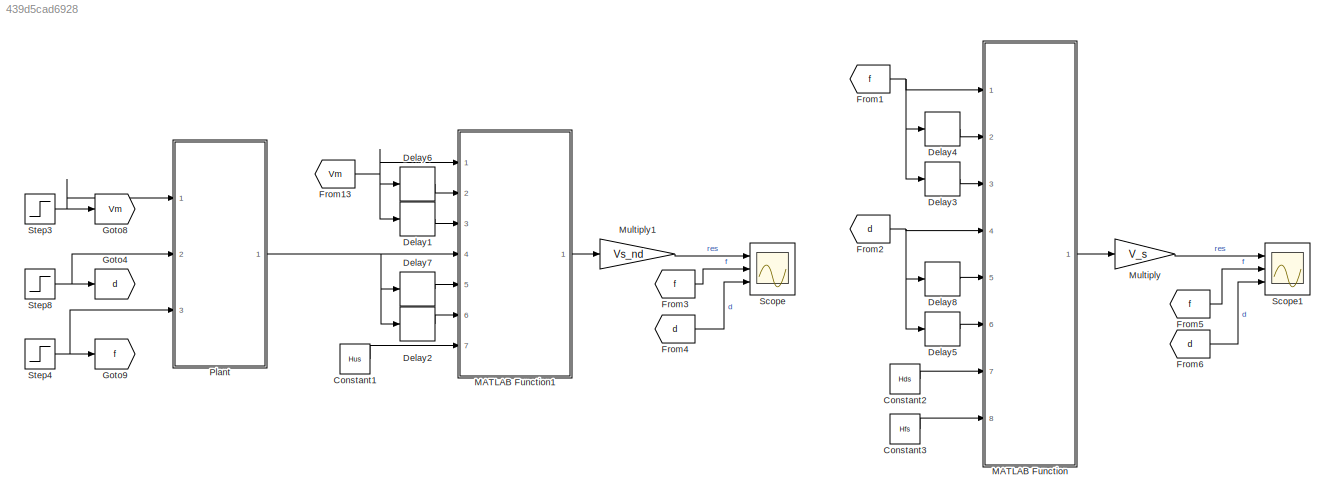
MODEL slx_439d5cad6928
KIND model
CONFIG AbsTol = auto
CONFIG EnableMultiTasking = on
CONFIG FixedStep = auto
CONFIG MaxStep = auto
CONFIG MinStep = auto
CONFIG RelTol = 1e-3
CONFIG SampleTimeConstraint = Unconstrained
CONFIG SolverName = ode45
CONFIG StartTime = 0.0
CONFIG StopTime = 30
BLOCK [Constant] Constant1
  Value = Hus
BLOCK [Constant] Constant2
  Value = Hds
BLOCK [Constant] Constant3
  Value = Hfs
BLOCK [Delay] Delay1
  DelayLength = 1
  InitialCondition = 0
  InputPortMap = u0
  Ports = [1, 1]
BLOCK [Delay] Delay2
  DelayLength = 1
  InitialCondition = 0
  InputPortMap = u0
  Ports = [1, 1]
BLOCK [Delay] Delay3
  DelayLength = 1
  InitialCondition = 0
  InputPortMap = u0
  Ports = [1, 1]
BLOCK [Delay] Delay4
  DelayLength = 1
  InitialCondition = 0
  InputPortMap = u0
  Ports = [1, 1]
BLOCK [Delay] Delay5
  DelayLength = 1
  InitialCondition = 0
  InputPortMap = u0
  Ports = [1, 1]
BLOCK [Delay] Delay6
  DelayLength = 1
  InitialCondition = 0
  InputPortMap = u0
  Ports = [1, 1]
BLOCK [Delay] Delay7
  DelayLength = 1
  InitialCondition = 0
  InputPortMap = u0
  Ports = [1, 1]
BLOCK [Delay] Delay8
  DelayLength = 1
  InitialCondition = 0
  InputPortMap = u0
  Ports = [1, 1]
BLOCK [From] From1
  GotoTag = f
  TagVisibility = global
BLOCK [From] From13
  GotoTag = Vm
  TagVisibility = global
BLOCK [From] From2
  GotoTag = d
  TagVisibility = global
BLOCK [From] From3
  GotoTag = f
  TagVisibility = global
BLOCK [From] From4
  GotoTag = d
  TagVisibility = global
BLOCK [From] From5
  GotoTag = f
  TagVisibility = global
BLOCK [From] From6
  GotoTag = d
  TagVisibility = global
BLOCK [Goto] Goto4
  GotoTag = d
  TagVisibility = global
BLOCK [Goto] Goto8
  GotoTag = Vm
  NameLocation = top
  TagVisibility = global
BLOCK [Goto] Goto9
  GotoTag = f
  TagVisibility = global
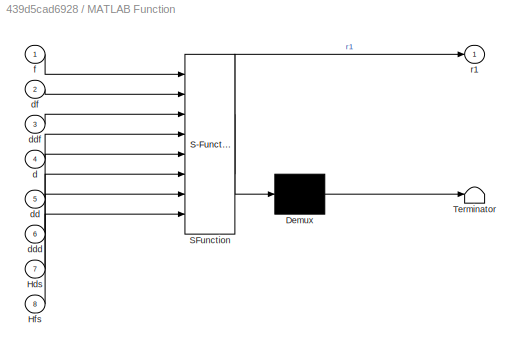
BLOCK [SubSystem] MATLAB Function
  ErrorFcn = Stateflow.Translate.translate
  PermitHierarchicalResolution = ExplicitOnly
  Ports = [8, 1]
  RequestExecContextInheritance = off
  SFBlockType = MATLAB Function
  TreatAsAtomicUnit = on
BLOCK [Demux] MATLAB Function/ Demux 
  Outputs = 1
  Ports = [1, 1]
BLOCK [S-Function] MATLAB Function/ SFunction 
  EnableBusSupport = on
  FunctionName = sf_sfun
  PortCounts = [8 2]
  Ports = [8, 2]
  SFcnIsStateOwnerBlock = off
  SFunctionDeploymentMode = off
  Tag = Stateflow S-Function 1
BLOCK [Terminator] MATLAB Function/ Terminator 
BLOCK [Inport] MATLAB Function/Hds
  Port = 7
BLOCK [Inport] MATLAB Function/Hfs
  Port = 8
BLOCK [Inport] MATLAB Function/d
  Port = 4
BLOCK [Inport] MATLAB Function/dd
  Port = 5
BLOCK [Inport] MATLAB Function/ddd
  Port = 6
BLOCK [Inport] MATLAB Function/ddf
  Port = 3
BLOCK [Inport] MATLAB Function/df
  Port = 2
BLOCK [Inport] MATLAB Function/f
BLOCK [Outport] MATLAB Function/r1
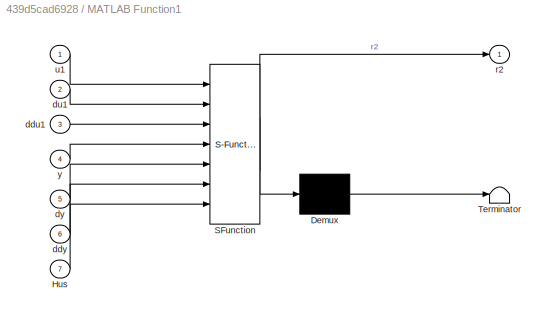
BLOCK [SubSystem] MATLAB Function1
  ErrorFcn = Stateflow.Translate.translate
  PermitHierarchicalResolution = ExplicitOnly
  Ports = [7, 1]
  RequestExecContextInheritance = off
  SFBlockType = MATLAB Function
  TreatAsAtomicUnit = on
BLOCK [Demux] MATLAB Function1/ Demux 
  Outputs = 1
  Ports = [1, 1]
BLOCK [S-Function] MATLAB Function1/ SFunction 
  EnableBusSupport = on
  FunctionName = sf_sfun
  PortCounts = [7 2]
  Ports = [7, 2]
  SFcnIsStateOwnerBlock = off
  SFunctionDeploymentMode = off
  Tag = Stateflow S-Function 3
BLOCK [Terminator] MATLAB Function1/ Terminator 
BLOCK [Inport] MATLAB Function1/Hus
  Port = 7
BLOCK [Inport] MATLAB Function1/ddu1
  Port = 3
BLOCK [Inport] MATLAB Function1/ddy
  Port = 6
BLOCK [Inport] MATLAB Function1/du1
  Port = 2
BLOCK [Inport] MATLAB Function1/dy
  Port = 5
BLOCK [Outport] MATLAB Function1/r2
BLOCK [Inport] MATLAB Function1/u1
BLOCK [Inport] MATLAB Function1/y
  Port = 4
BLOCK [Gain] Multiply
  Gain = V_s
  Multiplication = Matrix(K*u)
BLOCK [Gain] Multiply1
  Gain = Vs_nd
  Multiplication = Matrix(K*u)
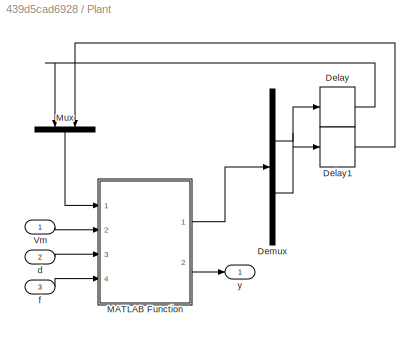
BLOCK [SubSystem] Plant
  Ports = [3, 1]
  RequestExecContextInheritance = off
BLOCK [Delay] Plant/Delay
  DelayLength = 1
  InputPortMap = u0
  InputProcessing = Columns as channels (frame based)
  Ports = [1, 1]
BLOCK [Delay] Plant/Delay1
  DelayLength = 1
  InputPortMap = u0
  InputProcessing = Columns as channels (frame based)
  Ports = [1, 1]
BLOCK [Demux] Plant/Demux
  Outputs = 2
  Ports = [1, 2]
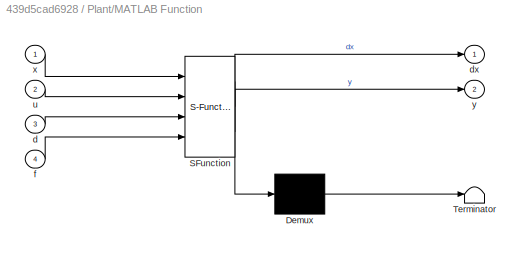
BLOCK [SubSystem] Plant/MATLAB Function
  ErrorFcn = Stateflow.Translate.translate
  PermitHierarchicalResolution = ExplicitOnly
  Ports = [4, 2]
  RequestExecContextInheritance = off
  SFBlockType = MATLAB Function
  TreatAsAtomicUnit = on
BLOCK [Demux] Plant/MATLAB Function/ Demux 
  Outputs = 1
  Ports = [1, 1]
BLOCK [S-Function] Plant/MATLAB Function/ SFunction 
  EnableBusSupport = on
  FunctionName = sf_sfun
  PortCounts = [4 3]
  Ports = [4, 3]
  SFcnIsStateOwnerBlock = off
  SFunctionDeploymentMode = off
  Tag = Stateflow S-Function 2
BLOCK [Terminator] Plant/MATLAB Function/ Terminator 
BLOCK [Inport] Plant/MATLAB Function/d
  Port = 3
BLOCK [Outport] Plant/MATLAB Function/dx
BLOCK [Inport] Plant/MATLAB Function/f
  Port = 4
BLOCK [Inport] Plant/MATLAB Function/u
  Port = 2
BLOCK [Inport] Plant/MATLAB Function/x
BLOCK [Outport] Plant/MATLAB Function/y
  Port = 2
BLOCK [Mux] Plant/Mux
  DisplayOption = bar
  Inputs = 2
  NameLocation = left
  Ports = [2, 1]
BLOCK [Inport] Plant/Vm
BLOCK [Inport] Plant/d
  Port = 2
BLOCK [Inport] Plant/f
  Port = 3
BLOCK [Outport] Plant/y
BLOCK [Scope] Scope
  Floating = off
  NumInputPorts = 3
  Ports = [3]
  ScopeSpecificationString = Simulink.scopes.TimeScopeBlockCfg('CurrentConfiguration', extmgr.ConfigurationSet(extmgr.Configuration('Core','General UI',true),extmgr.Configuration('Core','Source UI',true),extmgr.Configuration('Sources','WiredSimulink',true),extmgr.Configuration('Visuals','Time Domain',true,'SerializedDisplays',{struct('MinYLimReal','-4.82','MaxYLimReal','-1.02583','YLabelReal','','MinYLimMag','0.00000','MaxYLi...<+1981ch>
BLOCK [Scope] Scope1
  Floating = off
  NumInputPorts = 3
  Ports = [3]
  ScopeSpecificationString = Simulink.scopes.TimeScopeBlockCfg('CurrentConfiguration', extmgr.ConfigurationSet(extmgr.Configuration('Core','General UI',true),extmgr.Configuration('Core','Source UI',true),extmgr.Configuration('Sources','WiredSimulink',true,'DataLoggingVariableName','ScopeData1'),extmgr.Configuration('Visuals','Time Domain',true,'SerializedDisplays',{struct('MinYLimReal','-0.39161','MaxYLimReal','3.52445','YLab...<+2025ch>
BLOCK [Step] Step3
  After = 2
  SampleTime = 0
  Time = 0
BLOCK [Step] Step4
  After = 2
  SampleTime = 0
  Time = 2
BLOCK [Step] Step8
  After = 0.5
  SampleTime = 0
LINE Constant1:1 -> MATLAB Function1:7
LINE Constant2:1 -> MATLAB Function:7
LINE Constant3:1 -> MATLAB Function:8
LINE Delay1:1 -> MATLAB Function1:3
LINE Delay2:1 -> MATLAB Function1:6
LINE Delay3:1 -> MATLAB Function:3
LINE Delay4:1 -> MATLAB Function:2
LINE Delay5:1 -> MATLAB Function:6
LINE Delay6:1 -> MATLAB Function1:2
LINE Delay7:1 -> MATLAB Function1:5
LINE Delay8:1 -> MATLAB Function:5
NET From13:1 -> Delay1:1, Delay6:1, MATLAB Function1:1
NET From1:1 -> Delay3:1, Delay4:1, MATLAB Function:1
NET From2:1 -> Delay5:1, Delay8:1, MATLAB Function:4
LINE From3:1 -> Scope:2
LINE From4:1 -> Scope:3
LINE From5:1 -> Scope1:2
LINE From6:1 -> Scope1:3
LINE MATLAB Function1:1 -> Multiply1:1
LINE MATLAB Function:1 -> Multiply:1
LINE Multiply1:1 -> Scope:1
LINE Multiply:1 -> Scope1:1
LINE Plant/Delay1:1 -> Plant/Mux:2
LINE Plant/Delay:1 -> Plant/Mux:1
LINE Plant/Demux:1 -> Plant/Delay:1
LINE Plant/Demux:2 -> Plant/Delay1:1
LINE Plant/MATLAB Function:1 -> Plant/Demux:1
LINE Plant/MATLAB Function:2 -> Plant/y:1
LINE Plant/Mux:1 -> Plant/MATLAB Function:1
LINE Plant/Vm:1 -> Plant/MATLAB Function:2
LINE Plant/d:1 -> Plant/MATLAB Function:3
LINE Plant/f:1 -> Plant/MATLAB Function:4
NET Plant:1 -> Delay2:1, Delay7:1, MATLAB Function1:4
NET Step3:1 -> Goto8:1, Plant:1
NET Step4:1 -> Goto9:1, Plant:3
NET Step8:1 -> Goto4:1, Plant:2
note: NET lines group one-source signal fan-out (src -> all destinations, sorted); 1:1 wires keep LINE
CHART MATLAB Function states=1 transitions=1
  STATE_LABEL 'eML_blk_kernel()'
  STATE_LABEL 'SCRIPT:\nfunction r1 = fcn(f,df,ddf,d,dd,ddd,Hds,Hfs)\nd=[ddd;dd;d];\nf=[ddf;df;f];\nr1 = (Hds*d + Hfs*f);\n'
CHART Plant/MATLAB Function states=1 transitions=1
  STATE_LABEL 'eML_blk_kernel()'
  STATE_LABEL 'SCRIPT:\nfunction [dx,y]  = plant(x,u,d,f)\n% dx = zeros(2,1);\nA = [0 1 ; -0.16 -1];\nB = [0 ; 1];\nC = [1 0];\nBd = [-0.1 ; 0];\nBf = [0.1 ; 0];\ntemp = A*x;\ntemp2 = B*u;\ntemp3 = Bd*d;\ntemp4 = Bf*f;\ny=C*x;\ndx = temp(:,1) + temp2(:,1) + temp3(:,1) + temp4(:,1);\nend'
CHART MATLAB Function1 states=1 transitions=1
  STATE_LABEL 'eML_blk_kernel()'
  STATE_LABEL 'SCRIPT:\nfunction r2 = fcn(u1,du1,ddu1,y,dy,ddy,Hus)\ny=[ddy;dy;y];\nu=[ddu1;du1;u1];\nr2 = y-Hus*u;\n'
CHART  states=0 transitions=0
CHART  states=0 transitions=0
CHART  states=0 transitions=0
